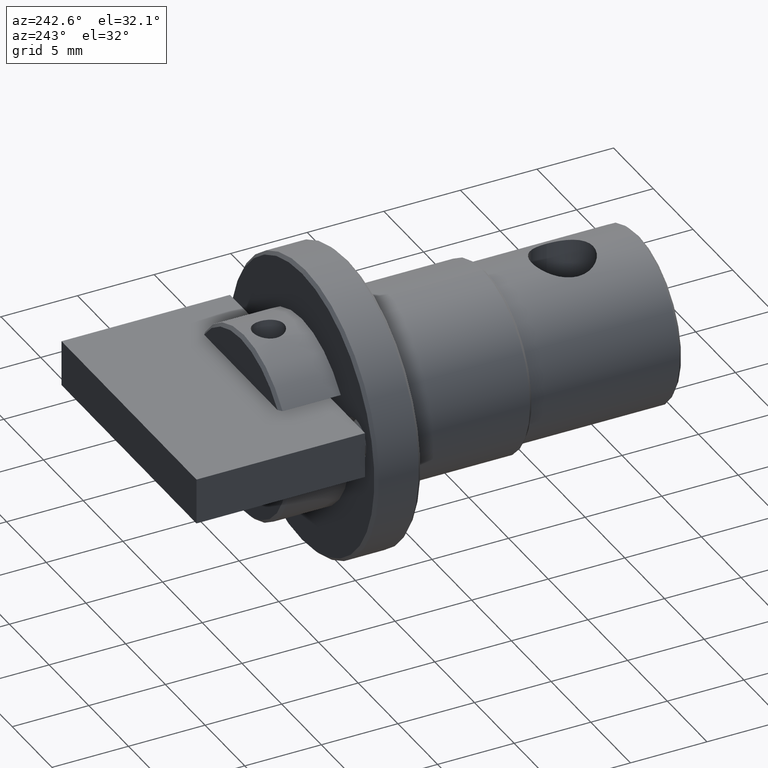
[diagram: clean part render]
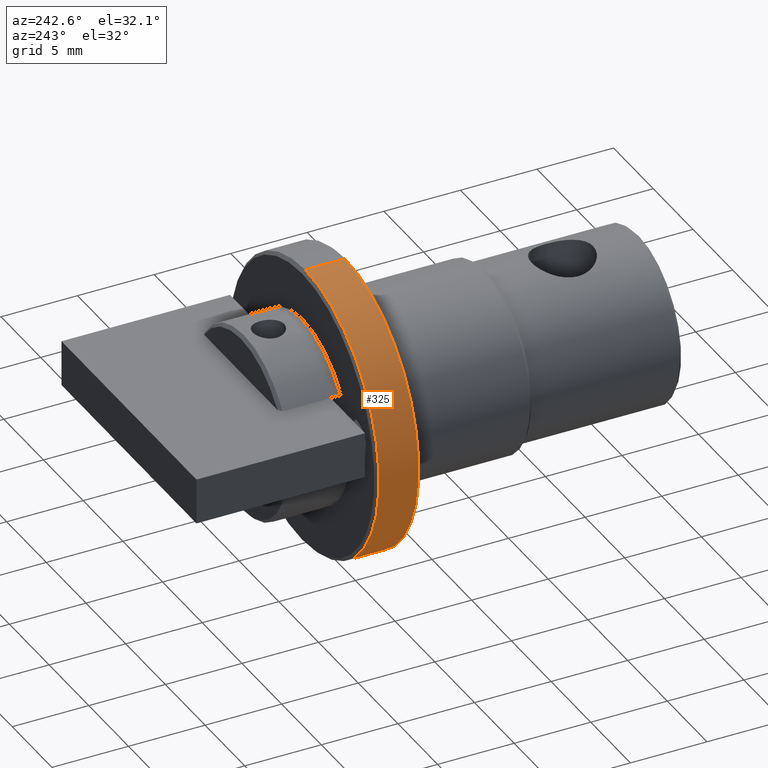
[diagram: same view with one face highlighted and labeled with its STEP entity id]
A machine part, auxiliary view. The second image highlights one B-rep face of the part: STEP entity #325.
In plain terms, the highlighted cylindrical surface (partial cylindrical patch) has radius 9.3 mm, axis along (-0, -1, -0).
Its self-contained STEP definition (entity closure, byte-faithful):
#27 = EDGE_CURVE ( 'NONE', #41, #149, #625, .T. ) ;
#32 = VERTEX_POINT ( 'NONE', #538 ) ;
#41 = VERTEX_POINT ( 'NONE', #498 ) ;
#146 = VERTEX_POINT ( 'NONE', #1056 ) ;
#149 = VERTEX_POINT ( 'NONE', #1051 ) ;
#325 = ADVANCED_FACE ( 'NONE', ( #2084 ), #2069, .T. ) ;
#326 = EDGE_LOOP ( 'NONE', ( #337, #338, #340, #341 ) ) ;
#337 = ORIENTED_EDGE ( 'NONE', *, *, #397, .F. ) ;
#338 = ORIENTED_EDGE ( 'NONE', *, *, #339, .T. ) ;
#339 = EDGE_CURVE ( 'NONE', #32, #41, #2038, .T. ) ;
#340 = ORIENTED_EDGE ( 'NONE', *, *, #27, .T. ) ;
#341 = ORIENTED_EDGE ( 'NONE', *, *, #342, .T. ) ;
#342 = EDGE_CURVE ( 'NONE', #149, #146, #2032, .T. ) ;
#397 = EDGE_CURVE ( 'NONE', #32, #146, #1665, .T. ) ;
#498 = CARTESIAN_POINT ( 'NONE',  ( -5.796632573378701600, 6.105878560888228900, -8.487161105680844000 ) ) ;
#538 = CARTESIAN_POINT ( 'NONE',  ( -5.796632573378700700, 6.105878560888228900, 10.11283889431915700 ) ) ;
#622 = DIRECTION ( 'NONE',  ( -0.0000000000000000000, -1.000000000000000000, -0.0000000000000000000 ) ) ;
#623 = VECTOR ( 'NONE', #622, 1000.000000000000000 ) ;
#624 = CARTESIAN_POINT ( 'NONE',  ( -5.796632573378701600, 6.305878560888230800, -8.487161105680844000 ) ) ;
#625 = LINE ( 'NONE', #624, #623 ) ;
#1051 = CARTESIAN_POINT ( 'NONE',  ( -5.796632573378701600, 3.505878560888227900, -8.487161105680844000 ) ) ;
#1056 = CARTESIAN_POINT ( 'NONE',  ( -5.796632573378700700, 3.505878560888227900, 10.11283889431915700 ) ) ;
#1662 = DIRECTION ( 'NONE',  ( -0.0000000000000000000, -1.000000000000000000, -0.0000000000000000000 ) ) ;
#1663 = VECTOR ( 'NONE', #1662, 1000.000000000000000 ) ;
#1664 = CARTESIAN_POINT ( 'NONE',  ( -5.796632573378700700, 6.305878560888230800, 10.11283889431915700 ) ) ;
#1665 = LINE ( 'NONE', #1664, #1663 ) ;
#2028 = DIRECTION ( 'NONE',  ( 0.0000000000000000000, 0.0000000000000000000, 1.000000000000000000 ) ) ;
#2029 = DIRECTION ( 'NONE',  ( -0.0000000000000000000, 1.000000000000000000, -0.0000000000000000000 ) ) ;
#2030 = CARTESIAN_POINT ( 'NONE',  ( -5.796632573378701600, 3.505878560888227900, 0.8128388943191566800 ) ) ;
#2031 = AXIS2_PLACEMENT_3D ( 'NONE', #2030, #2029, #2028 ) ;
#2032 = CIRCLE ( 'NONE', #2031, 9.300000000000000700 ) ;
#2034 = DIRECTION ( 'NONE',  ( 0.0000000000000000000, 0.0000000000000000000, 1.000000000000000000 ) ) ;
#2035 = DIRECTION ( 'NONE',  ( 0.0000000000000000000, -1.000000000000000000, 0.0000000000000000000 ) ) ;
#2036 = CARTESIAN_POINT ( 'NONE',  ( -5.796632573378701600, 6.105878560888228900, 0.8128388943191566800 ) ) ;
#2037 = AXIS2_PLACEMENT_3D ( 'NONE', #2036, #2035, #2034 ) ;
#2038 = CIRCLE ( 'NONE', #2037, 9.300000000000000700 ) ;
#2063 = DIRECTION ( 'NONE',  ( 0.0000000000000000000, 0.0000000000000000000, -1.000000000000000000 ) ) ;
#2064 = DIRECTION ( 'NONE',  ( -0.0000000000000000000, -1.000000000000000000, -0.0000000000000000000 ) ) ;
#2065 = CARTESIAN_POINT ( 'NONE',  ( -5.796632573378701600, 6.305878560888230800, 0.8128388943191566800 ) ) ;
#2066 = AXIS2_PLACEMENT_3D ( 'NONE', #2065, #2064, #2063 ) ;
#2069 = CYLINDRICAL_SURFACE ( 'NONE', #2066, 9.300000000000000700 ) ;
#2084 = FACE_OUTER_BOUND ( 'NONE', #326, .T. ) ;